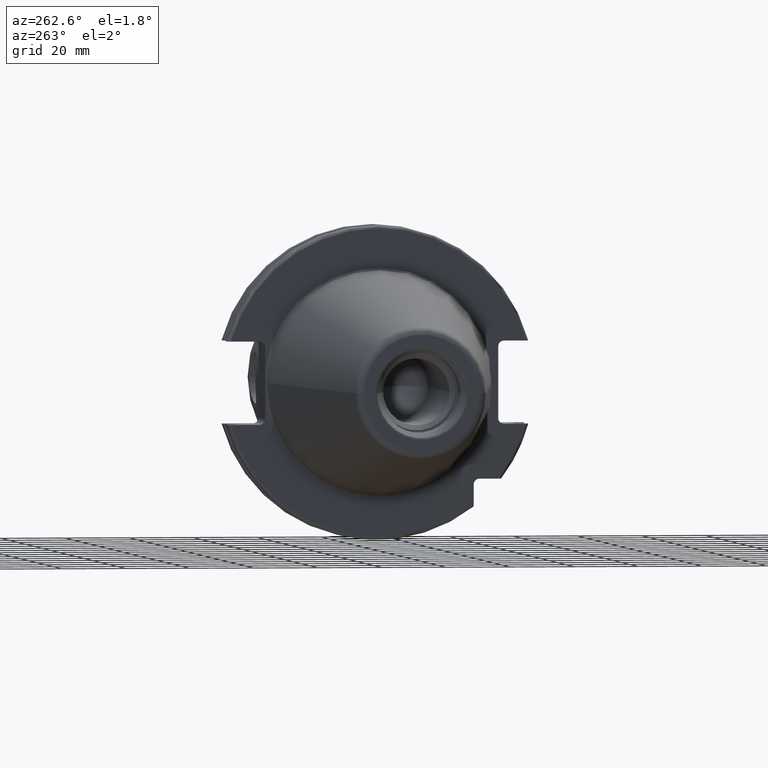
[diagram: clean part render]
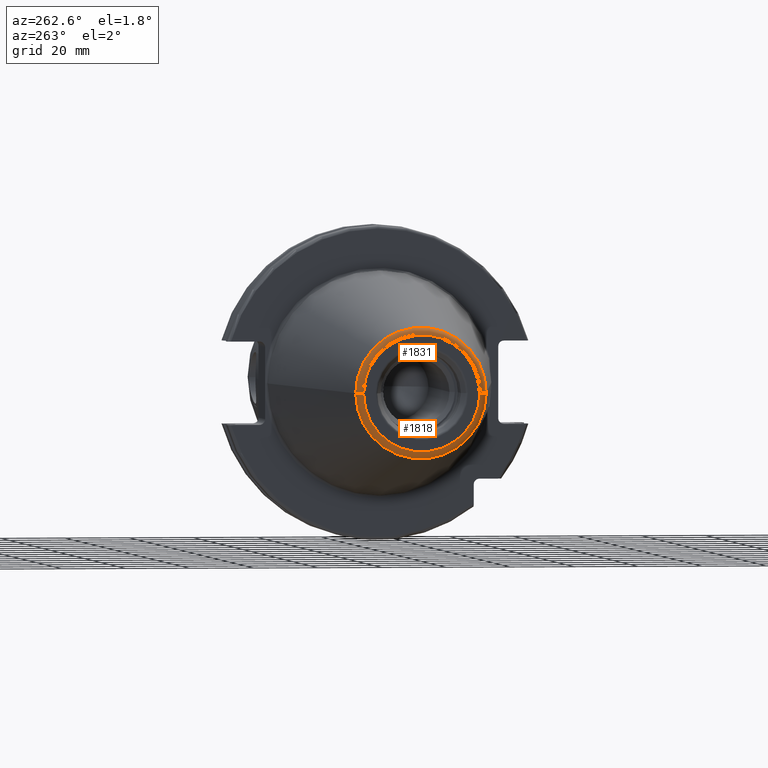
[diagram: same view with one multi-face feature highlighted, each face labeled with its STEP entity id]
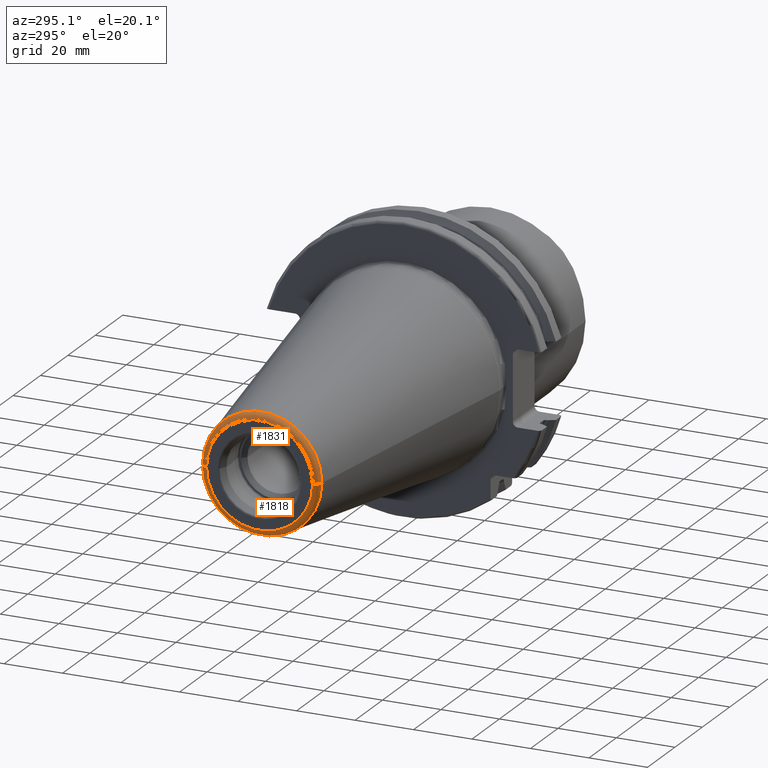
[diagram: same view with one multi-face feature highlighted, each face labeled with its STEP entity id]
A machine part, auxiliary view. The highlighted faces form ONE feature: a constant-radius fillet chain: 2 tangent blend faces with common blend radius 2.25 mm. The faces share edges in the B-rep.
A second angle (auxiliary view) of the same feature is appended — it is thin or edge-on in the first view.
Their STEP definitions:
[1] entity #1831 (Torus):
#7=CARTESIAN_POINT('',(-1.016E2,0.E0,0.E0));
#8=DIRECTION('',(1.E0,0.E0,0.E0));
#9=DIRECTION('',(0.E0,1.E0,0.E0));
#10=AXIS2_PLACEMENT_3D('',#7,#8,#9);
#22=CARTESIAN_POINT('',(-9.935E1,1.816144700117E1,0.E0));
#23=DIRECTION('',(0.E0,0.E0,1.E0));
#24=DIRECTION('',(-1.443186691705E-1,9.895312636440E-1,0.E0));
#25=AXIS2_PLACEMENT_3D('',#22,#23,#24);
#27=CARTESIAN_POINT('',(-9.935E1,-1.816144700117E1,0.E0));
#28=DIRECTION('',(0.E0,0.E0,-1.E0));
#29=DIRECTION('',(-1.443186691705E-1,-9.895312636440E-1,0.E0));
#30=AXIS2_PLACEMENT_3D('',#27,#28,#29);
#37=CARTESIAN_POINT('',(-9.967471700563E1,0.E0,0.E0));
#38=DIRECTION('',(1.E0,0.E0,0.E0));
#39=DIRECTION('',(0.E0,1.E0,0.E0));
#40=AXIS2_PLACEMENT_3D('',#37,#38,#39);
#1510=CARTESIAN_POINT('',(-9.967471700563E1,2.038789234437E1,0.E0));
#1511=CARTESIAN_POINT('',(-1.016E2,1.816144700117E1,0.E0));
#1512=VERTEX_POINT('',#1510);
#1513=VERTEX_POINT('',#1511);
#1514=CARTESIAN_POINT('',(-9.967471700563E1,-2.038789234437E1,0.E0));
#1515=CARTESIAN_POINT('',(-1.016E2,-1.816144700117E1,0.E0));
#1516=VERTEX_POINT('',#1514);
#1517=VERTEX_POINT('',#1515);
#1819=CARTESIAN_POINT('',(-9.935E1,0.E0,0.E0));
#1820=DIRECTION('',(1.E0,0.E0,0.E0));
#1821=DIRECTION('',(0.E0,-1.E0,0.E0));
#1822=AXIS2_PLACEMENT_3D('',#1819,#1820,#1821);
#1823=TOROIDAL_SURFACE('',#1822,1.816144700117E1,2.25E0);
#1824=ORIENTED_EDGE('',*,*,#1809,.F.);
#1826=ORIENTED_EDGE('',*,*,#1825,.T.);
#1827=ORIENTED_EDGE('',*,*,#1812,.T.);
#1828=ORIENTED_EDGE('',*,*,#1793,.F.);
#1829=EDGE_LOOP('',(#1824,#1826,#1827,#1828));
#1830=FACE_OUTER_BOUND('',#1829,.F.);
#1831=ADVANCED_FACE('',(#1830),#1823,.T.);
#11=CIRCLE('',#10,1.816144700117E1);
#26=CIRCLE('',#25,2.25E0);
#31=CIRCLE('',#30,2.25E0);
#41=CIRCLE('',#40,2.038789234437E1);
#1793=EDGE_CURVE('',#1513,#1517,#11,.T.);
#1809=EDGE_CURVE('',#1512,#1513,#26,.T.);
#1812=EDGE_CURVE('',#1516,#1517,#31,.T.);
#1825=EDGE_CURVE('',#1512,#1516,#41,.T.);
[2] entity #1818 (Torus):
#2=CARTESIAN_POINT('',(-1.016E2,0.E0,0.E0));
#3=DIRECTION('',(-1.E0,0.E0,0.E0));
#4=DIRECTION('',(0.E0,1.E0,0.E0));
#5=AXIS2_PLACEMENT_3D('',#2,#3,#4);
#22=CARTESIAN_POINT('',(-9.935E1,1.816144700117E1,0.E0));
#23=DIRECTION('',(0.E0,0.E0,1.E0));
#24=DIRECTION('',(-1.443186691705E-1,9.895312636440E-1,0.E0));
#25=AXIS2_PLACEMENT_3D('',#22,#23,#24);
#27=CARTESIAN_POINT('',(-9.935E1,-1.816144700117E1,0.E0));
#28=DIRECTION('',(0.E0,0.E0,-1.E0));
#29=DIRECTION('',(-1.443186691705E-1,-9.895312636440E-1,0.E0));
#30=AXIS2_PLACEMENT_3D('',#27,#28,#29);
#32=CARTESIAN_POINT('',(-9.967471700563E1,0.E0,0.E0));
#33=DIRECTION('',(-1.E0,0.E0,0.E0));
#34=DIRECTION('',(0.E0,1.E0,0.E0));
#35=AXIS2_PLACEMENT_3D('',#32,#33,#34);
#1510=CARTESIAN_POINT('',(-9.967471700563E1,2.038789234437E1,0.E0));
#1511=CARTESIAN_POINT('',(-1.016E2,1.816144700117E1,0.E0));
#1512=VERTEX_POINT('',#1510);
#1513=VERTEX_POINT('',#1511);
#1514=CARTESIAN_POINT('',(-9.967471700563E1,-2.038789234437E1,0.E0));
#1515=CARTESIAN_POINT('',(-1.016E2,-1.816144700117E1,0.E0));
#1516=VERTEX_POINT('',#1514);
#1517=VERTEX_POINT('',#1515);
#1804=CARTESIAN_POINT('',(-9.935E1,0.E0,0.E0));
#1805=DIRECTION('',(1.E0,0.E0,0.E0));
#1806=DIRECTION('',(0.E0,-1.E0,0.E0));
#1807=AXIS2_PLACEMENT_3D('',#1804,#1805,#1806);
#1808=TOROIDAL_SURFACE('',#1807,1.816144700117E1,2.25E0);
#1810=ORIENTED_EDGE('',*,*,#1809,.T.);
#1811=ORIENTED_EDGE('',*,*,#1791,.T.);
#1813=ORIENTED_EDGE('',*,*,#1812,.F.);
#1815=ORIENTED_EDGE('',*,*,#1814,.F.);
#1816=EDGE_LOOP('',(#1810,#1811,#1813,#1815));
#1817=FACE_OUTER_BOUND('',#1816,.F.);
#1818=ADVANCED_FACE('',(#1817),#1808,.T.);
#6=CIRCLE('',#5,1.816144700117E1);
#26=CIRCLE('',#25,2.25E0);
#31=CIRCLE('',#30,2.25E0);
#36=CIRCLE('',#35,2.038789234437E1);
#1791=EDGE_CURVE('',#1513,#1517,#6,.T.);
#1809=EDGE_CURVE('',#1512,#1513,#26,.T.);
#1812=EDGE_CURVE('',#1516,#1517,#31,.T.);
#1814=EDGE_CURVE('',#1512,#1516,#36,.T.);